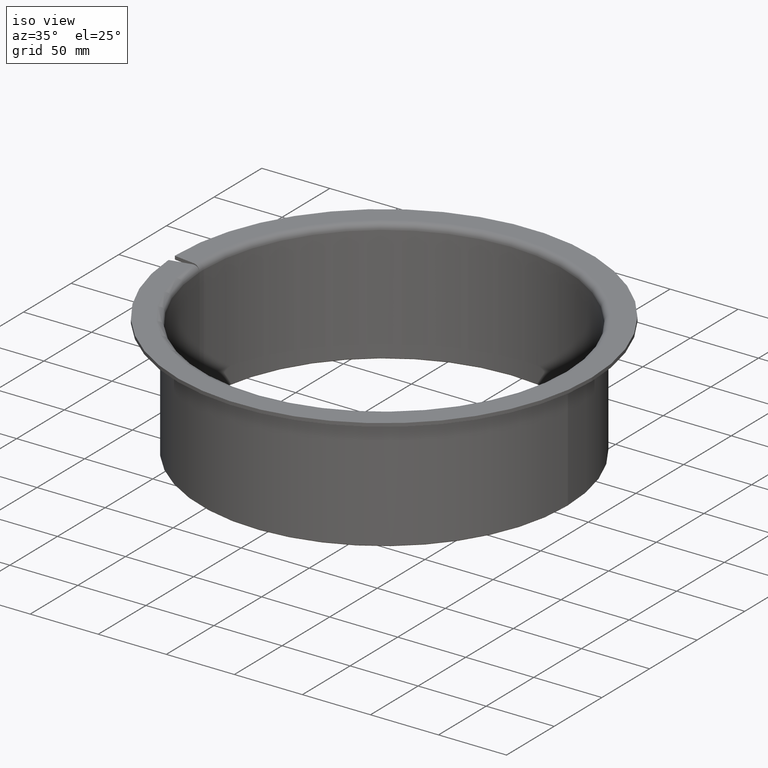
[diagram: clean part render]
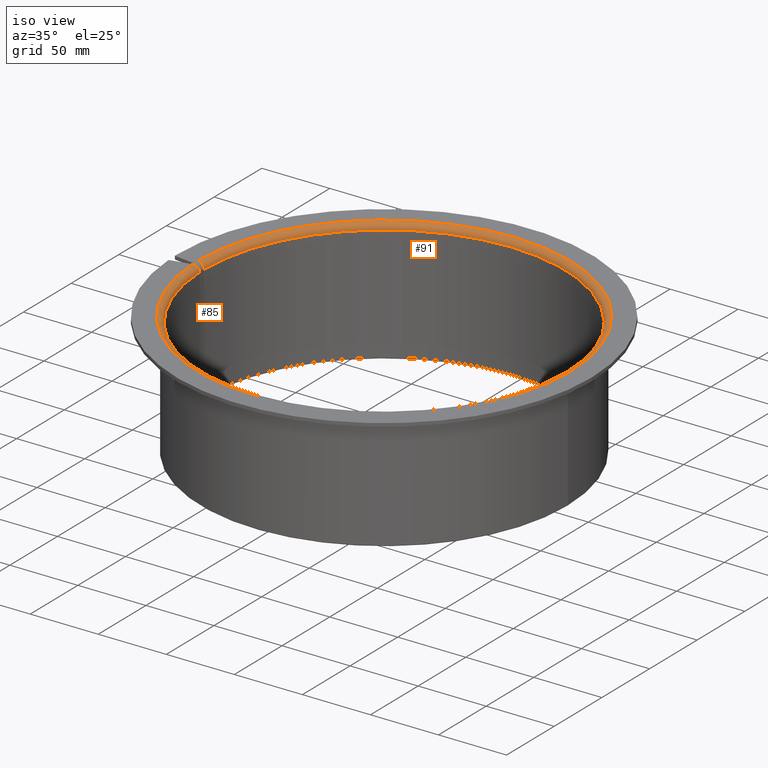
[diagram: same view with one multi-face feature highlighted, each face labeled with its STEP entity id]
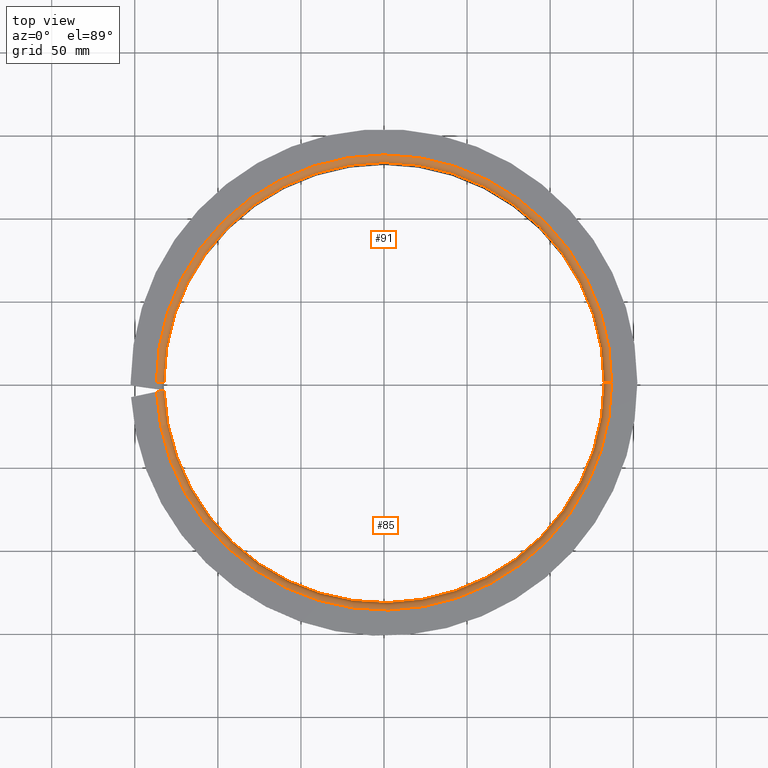
[diagram: same view with one multi-face feature highlighted, each face labeled with its STEP entity id]
A machine part, iso view. The highlighted faces form ONE feature: a constant-radius fillet chain: 2 tangent blend faces with common blend radius 4.5 mm. The faces share edges in the B-rep.
A second angle (top view) of the same feature is appended — it is thin or edge-on in the first view.
Their STEP definitions:
[1] entity #91 (Torus):
#91=ADVANCED_FACE('',(#134),#135,.T.);
#134=FACE_OUTER_BOUND('',#186,.T.);
#135=TOROIDAL_SURFACE('',#187,137.0,4.5);
#186=EDGE_LOOP('',(#324,#325,#326,#327));
#187=AXIS2_PLACEMENT_3D('',#328,#329,#330);
#324=ORIENTED_EDGE('',*,*,#451,.T.);
#325=ORIENTED_EDGE('',*,*,#458,.F.);
#326=ORIENTED_EDGE('',*,*,#447,.T.);
#327=ORIENTED_EDGE('',*,*,#465,.T.);
#328=CARTESIAN_POINT('',(2.22044604925031E-015,-3.71059565656411E-015,85.5));
#329=DIRECTION('',(-1.16269284789061E-031,-6.12323399573677E-017,1.0));
#330=DIRECTION('',(-1.0,1.89882151931499E-015,0.0));
#447=EDGE_CURVE('',#540,#541,#542,.T.);
#451=EDGE_CURVE('',#548,#549,#550,.T.);
#458=EDGE_CURVE('',#540,#549,#558,.T.);
#465=EDGE_CURVE('',#541,#548,#566,.T.);
#540=VERTEX_POINT('',#671);
#541=VERTEX_POINT('',#672);
#542=CIRCLE('',#673,4.5);
#548=VERTEX_POINT('',#700);
#549=VERTEX_POINT('',#701);
#550=CIRCLE('',#702,4.5);
#558=CIRCLE('',#734,132.5);
#566=CIRCLE('',#748,137.0);
#671=CARTESIAN_POINT('',(132.5,-2.69733618835733E-013,85.5));
#672=CARTESIAN_POINT('',(137.0,-2.80902350480844E-013,90.0));
#673=AXIS2_PLACEMENT_3D('',#847,#848,#849);
#700=CARTESIAN_POINT('',(-137.0,2.729300681081E-013,90.0));
#701=CARTESIAN_POINT('',(-132.5,2.6154857072473E-013,85.5));
#702=AXIS2_PLACEMENT_3D('',#856,#857,#858);
#734=AXIS2_PLACEMENT_3D('',#868,#869,#870);
#748=AXIS2_PLACEMENT_3D('',#878,#879,#880);
#847=CARTESIAN_POINT('',(137.0,-2.80626804951036E-013,85.5));
#848=DIRECTION('',(2.02128619922972E-015,1.0,6.12323399573677E-017));
#849=DIRECTION('',(1.0,-2.02128619922972E-015,-7.49879891330928E-033));
#856=CARTESIAN_POINT('',(-137.0,2.73205613637908E-013,85.5));
#857=DIRECTION('',(2.02128619922972E-015,1.0,6.12323399573677E-017));
#858=DIRECTION('',(-1.0,2.02128619922972E-015,7.49879891330928E-033));
#868=CARTESIAN_POINT('',(-7.04575888216064E-030,-3.7105956565641E-015,85.5));
#869=DIRECTION('',(-1.16269284789061E-031,-6.12323399573677E-017,1.0));
#870=DIRECTION('',(-1.0,1.88237377125682E-015,-1.00713410063059E-033));
#878=CARTESIAN_POINT('',(-7.04575888216064E-030,-3.7105956565641E-015,90.0));
#879=DIRECTION('',(-1.16269284789061E-031,-6.12323399573677E-017,1.0));
#880=DIRECTION('',(-1.0,1.88237377125682E-015,-1.0071341006306E-033));
[2] entity #85 (Torus):
#85=ADVANCED_FACE('',(#122),#123,.T.);
#122=FACE_OUTER_BOUND('',#174,.T.);
#123=TOROIDAL_SURFACE('',#175,137.0,4.5);
#174=EDGE_LOOP('',(#276,#277,#278,#279));
#175=AXIS2_PLACEMENT_3D('',#280,#281,#282);
#276=ORIENTED_EDGE('',*,*,#447,.F.);
#277=ORIENTED_EDGE('',*,*,#448,.F.);
#278=ORIENTED_EDGE('',*,*,#449,.T.);
#279=ORIENTED_EDGE('',*,*,#450,.T.);
#280=CARTESIAN_POINT('',(2.22044604925031E-015,-3.71059565656411E-015,85.5));
#281=DIRECTION('',(-1.16269284789061E-031,-6.12323399573677E-017,1.0));
#282=DIRECTION('',(-1.0,1.89882151931499E-015,0.0));
#447=EDGE_CURVE('',#540,#541,#542,.T.);
#448=EDGE_CURVE('',#543,#540,#544,.T.);
#449=EDGE_CURVE('',#543,#545,#546,.T.);
#450=EDGE_CURVE('',#545,#541,#547,.T.);
#540=VERTEX_POINT('',#671);
#541=VERTEX_POINT('',#672);
#542=CIRCLE('',#673,4.5);
#543=VERTEX_POINT('',#674);
#544=CIRCLE('',#675,132.5);
#545=VERTEX_POINT('',#676);
#546=B_SPLINE_CURVE_WITH_KNOTS('',3,(#677,#678,#679,#680,#681,#682,#683,#684,#685,#686,#687,#688,#689,#690,#691,#692,#693,#694,#695,#696,#697,#698),.UNSPECIFIED.,.F.,.F.,(4,2,2,2,2,2,2,2,2,2,4),(1.25958821930172,1.34249353694459,1.42539885458747,1.50830417223035,1.59186068827153,1.67541720431271,1.75973737954261,1.84405755477251,1.92896778391976,2.01387801306702,2.09874952689838),.UNSPECIFIED.);
#547=CIRCLE('',#699,137.0);
#671=CARTESIAN_POINT('',(132.5,-2.69733618835733E-013,85.5));
#672=CARTESIAN_POINT('',(137.0,-2.80902350480844E-013,90.0));
#673=AXIS2_PLACEMENT_3D('',#847,#848,#849);
#674=CARTESIAN_POINT('',(-132.41928458003,-4.62418331308071,85.5));
#675=AXIS2_PLACEMENT_3D('',#850,#851,#852);
#676=CARTESIAN_POINT('',(-136.886571598268,-5.57373448166978,90.0));
#677=CARTESIAN_POINT('',(-132.5042965131,-4.64225315727486,84.6265019897815));
#678=CARTESIAN_POINT('',(-132.446243896686,-4.62991369273411,84.9218868030754));
#679=CARTESIAN_POINT('',(-132.41928458003,-4.62418331308072,85.2236489411904));
#680=CARTESIAN_POINT('',(-132.41928458003,-4.62418331308072,85.7763510588096));
#681=CARTESIAN_POINT('',(-132.446243896686,-4.62991369273411,86.0781131969246));
#682=CARTESIAN_POINT('',(-132.562349129513,-4.65459262181561,86.6688828235124));
#683=CARTESIAN_POINT('',(-132.651484774309,-4.67353898799569,86.9578924217955));
#684=CARTESIAN_POINT('',(-132.860776986848,-4.71802542107721,87.4698509434147));
#685=CARTESIAN_POINT('',(-133.000580442385,-4.74774156289576,87.7397345412939));
#686=CARTESIAN_POINT('',(-133.332951358657,-4.81838918205758,88.2431442207459));
#687=CARTESIAN_POINT('',(-133.52549851778,-4.85931634416001,88.4766843115249));
#688=CARTESIAN_POINT('',(-133.914316219159,-4.94196209788162,88.8705501400029));
#689=CARTESIAN_POINT('',(-134.146758209992,-4.99136916824064,89.0668057165547));
#690=CARTESIAN_POINT('',(-134.646822715277,-5.09766116009719,89.4050268619307));
#691=CARTESIAN_POINT('',(-134.914432661235,-5.15454341007876,89.5470118526132));
#692=CARTESIAN_POINT('',(-135.424848149831,-5.26303557135777,89.7612916012405));
#693=CARTESIAN_POINT('',(-135.714886261778,-5.32468507518629,89.8529965288564));
#694=CARTESIAN_POINT('',(-136.30732417188,-5.45061164036053,89.9723468506234));
#695=CARTESIAN_POINT('',(-136.609722475208,-5.51488838397071,90.0));
#696=CARTESIAN_POINT('',(-137.163294490351,-5.63255374814619,90.0));
#697=CARTESIAN_POINT('',(-137.465557439335,-5.69680172130237,89.9723721051066));
#698=CARTESIAN_POINT('',(-137.761637519103,-5.75973548503687,89.9127194139659));
#699=AXIS2_PLACEMENT_3D('',#853,#854,#855);
#847=CARTESIAN_POINT('',(137.0,-2.80626804951036E-013,85.5));
#848=DIRECTION('',(2.02128619922972E-015,1.0,6.12323399573677E-017));
#849=DIRECTION('',(1.0,-2.02128619922972E-015,-7.49879891330928E-033));
#850=CARTESIAN_POINT('',(-7.04575888216064E-030,-3.7105956565641E-015,85.5));
#851=DIRECTION('',(-1.16269284789061E-031,-6.12323399573677E-017,1.0));
#852=DIRECTION('',(-1.0,1.88237377125682E-015,-1.00713410063059E-033));
#853=CARTESIAN_POINT('',(-7.04575888216064E-030,-3.7105956565641E-015,90.0));
#854=DIRECTION('',(-1.16269284789061E-031,-6.12323399573677E-017,1.0));
#855=DIRECTION('',(-1.0,1.88237377125682E-015,-1.0071341006306E-033));